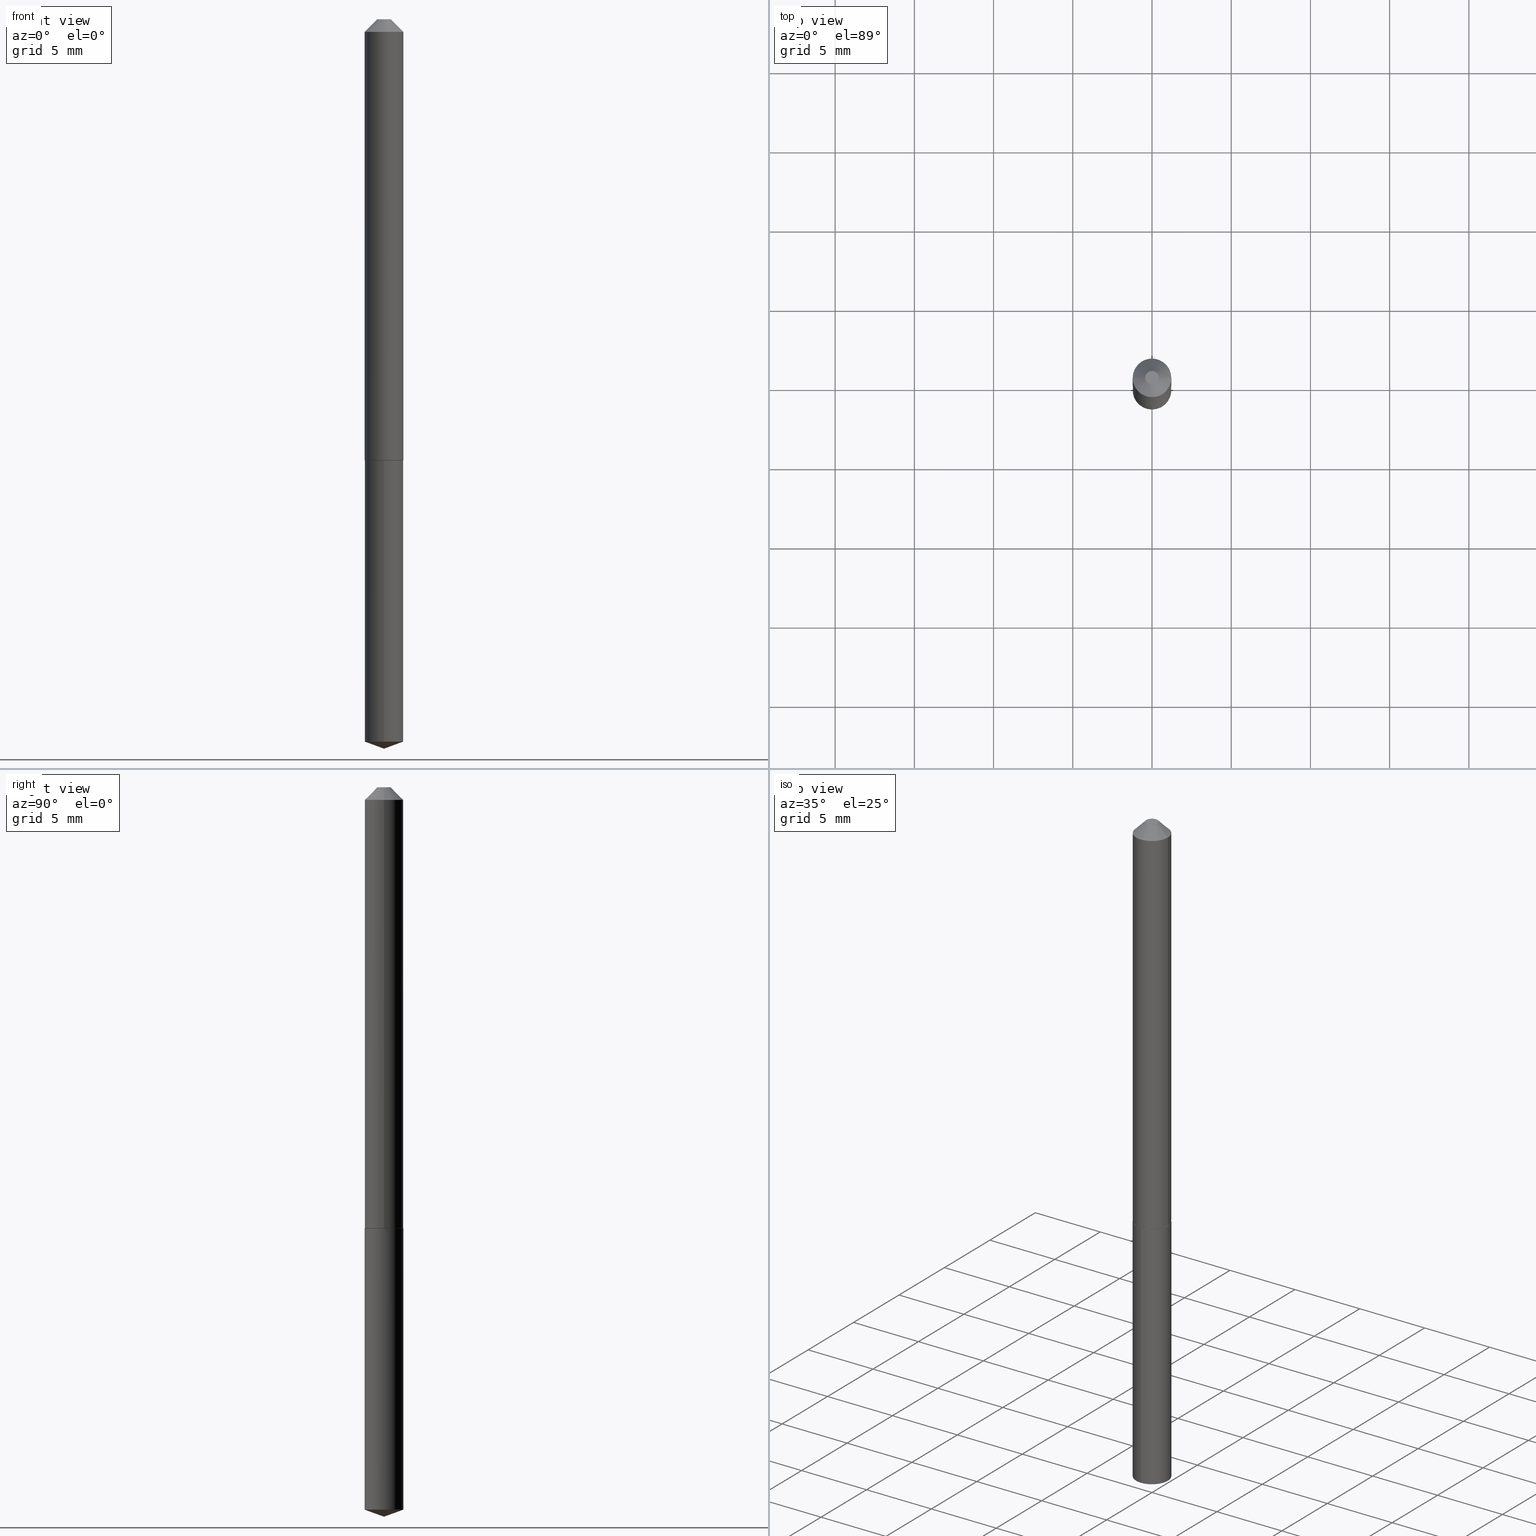
[diagram: canonical four-view strip — front | top / right | iso, engineering-drawing reading convention]
A machine part, canonical four-view strip (front | top / right | iso — engineering-drawing reading convention). The complete STEP part file that produces these views, byte-faithful:
ISO-10303-21;
HEADER;
FILE_DESCRIPTION (( 'STEP AP203' ),
    '1' );
FILE_NAME ('56250.STEP',
    '2024-04-22T21:28:52',
    ( '' ),
    ( '' ),
    'SwSTEP 2.0',
    'SolidWorks 2023',
    '' );
FILE_SCHEMA (( 'CONFIG_CONTROL_DESIGN' ));
ENDSEC;

DATA;
#1 = ORIENTED_EDGE ( 'NONE', *, *, #209, .T. ) ;
#2 = CIRCLE ( 'NONE', #269, 0.04750000000000010464 ) ;
#3 = PERSON_AND_ORGANIZATION ( #266, #111 ) ;
#4 = EDGE_LOOP ( 'NONE', ( #155, #368, #305, #64 ) ) ;
#5 = ADVANCED_FACE ( 'NONE', ( #193 ), #282, .F. ) ;
#6 = VERTEX_POINT ( 'NONE', #101 ) ;
#7 = VERTEX_POINT ( 'NONE', #12 ) ;
#8 = EDGE_CURVE ( 'NONE', #278, #100, #372, .T. ) ;
#9 = AXIS2_PLACEMENT_3D ( 'NONE', #171, #144, #202 ) ;
#10 = DIRECTION ( 'NONE',  ( -6.982962677686265922E-15, -1.000000000000000000, 5.691349986800547879E-15 ) ) ;
#11 = EDGE_LOOP ( 'NONE', ( #36, #90, #126, #192 ) ) ;
#12 = CARTESIAN_POINT ( 'NONE',  ( -0.01675000000000000100, 1.715190207706684202E-16, -1.224646799157442850E-19 ) ) ;
#13 = CLOSED_SHELL ( 'NONE', ( #91, #340, #182, #250, #53 ) ) ;
#14 = CIRCLE ( 'NONE', #175, 0.01674999999999999753 ) ;
#15 = EDGE_CURVE ( 'NONE', #66, #200, #103, .T. ) ;
#16 = ORIENTED_EDGE ( 'NONE', *, *, #187, .T. ) ;
#17 = ORIENTED_EDGE ( 'NONE', *, *, #246, .F. ) ;
#18 = COORDINATED_UNIVERSAL_TIME_OFFSET ( 5, 0, .BEHIND. ) ;
#19 = ORIENTED_EDGE ( 'NONE', *, *, #177, .T. ) ;
#20 = EDGE_CURVE ( 'NONE', #309, #100, #62, .T. ) ;
#21 = PERSON_AND_ORGANIZATION ( #266, #111 ) ;
#22 = DIRECTION ( 'NONE',  ( 1.000000000000000000, -6.982962677686262766E-15, 0.000000000000000000 ) ) ;
#23 = AXIS2_PLACEMENT_3D ( 'NONE', #233, #113, #174 ) ;
#24 = PERSON_AND_ORGANIZATION_ROLE ( 'creator' ) ;
#25 = DIRECTION ( 'NONE',  ( -1.000000000000000000, 6.982962677686266711E-15, 0.000000000000000000 ) ) ;
#26 = CARTESIAN_POINT ( 'NONE',  ( 4.432408605648489882E-29, -6.328315090023304083E-15, -1.812500000000000222 ) ) ;
#27 = DIRECTION ( 'NONE',  ( 2.445468806185136597E-29, -3.491481338843145583E-15, -1.000000000000000000 ) ) ;
#28 = ADVANCED_FACE ( 'NONE', ( #41 ), #225, .T. ) ;
#29 = DIRECTION ( 'NONE',  ( -6.982962677686265922E-15, -1.000000000000000000, 2.845674993400273939E-15 ) ) ;
#30 = DIRECTION ( 'NONE',  ( -2.445478307007458398E-29, 3.491467733124827463E-15, 1.000000000000000000 ) ) ;
#31 = FACE_OUTER_BOUND ( 'NONE', #302, .T. ) ;
#32 = DIRECTION ( 'NONE',  ( -2.445478307007458398E-29, 3.491467733124827463E-15, 1.000000000000000000 ) ) ;
#33 = ORIENTED_EDGE ( 'NONE', *, *, #349, .T. ) ;
#34 = CIRCLE ( 'NONE', #290, 0.04800000000000000100 ) ;
#35 = CARTESIAN_POINT ( 'NONE',  ( 3.410605131648921246E-16, 0.04799999999999618461, -1.096000000000000307 ) ) ;
#36 = ORIENTED_EDGE ( 'NONE', *, *, #60, .F. ) ;
#37 = CC_DESIGN_APPROVAL ( #264, ( #43 ) ) ;
#38 = ORIENTED_EDGE ( 'NONE', *, *, #365, .F. ) ;
#39 = APPLICATION_CONTEXT ( 'configuration controlled 3d designs of mechanical parts and assemblies' ) ;
#40 = EDGE_LOOP ( 'NONE', ( #151, #281 ) ) ;
#41 = FACE_OUTER_BOUND ( 'NONE', #223, .T. ) ;
#42 = CIRCLE ( 'NONE', #118, 0.04800000000000000100 ) ;
#43 = SECURITY_CLASSIFICATION ( '', '', #105 ) ;
#44 = DIRECTION ( 'NONE',  ( -2.445468806185136877E-29, 3.491481338843145188E-15, 1.000000000000000000 ) ) ;
#45 = ORIENTED_EDGE ( 'NONE', *, *, #154, .F. ) ;
#46 = CARTESIAN_POINT ( 'NONE',  ( -0.04800000000000013284, -3.483857293537816994E-15, -1.095500000000000140 ) ) ;
#47 = EDGE_CURVE ( 'NONE', #161, #200, #374, .T. ) ;
#48 =( LENGTH_UNIT ( ) NAMED_UNIT ( * ) SI_UNIT ( $, .METRE. ) );
#49 = DIRECTION ( 'NONE',  ( 1.000000000000000000, -6.982962677686266711E-15, 4.876219677916620331E-29 ) ) ;
#50 = PRODUCT_RELATED_PRODUCT_CATEGORY ( 'detail', '', ( #238 ) ) ;
#51 = CARTESIAN_POINT ( 'NONE',  ( 0.000000000000000000, 0.000000000000000000, 0.000000000000000000 ) ) ;
#52 = CARTESIAN_POINT ( 'NONE',  ( 0.04750000000000010464, -4.158354274562186373E-15, -1.096000000000000085 ) ) ;
#53 = ADVANCED_FACE ( 'NONE', ( #369 ), #341, .F. ) ;
#54 = FACE_OUTER_BOUND ( 'NONE', #149, .T. ) ;
#55 = VECTOR ( 'NONE', #180, 39.37007874015748143 ) ;
#56 = LOCAL_TIME ( 17, 28, 52.00000000000000000, #357 ) ;
#57 = DIRECTION ( 'NONE',  ( 0.000000000000000000, 0.000000000000000000, 1.000000000000000000 ) ) ;
#58 = CARTESIAN_POINT ( 'NONE',  ( 0.04800000000000000794, -4.384126957318825829E-16, -0.03125000000000020123 ) ) ;
#59 = CARTESIAN_POINT ( 'NONE',  ( 0.000000000000000000, 0.000000000000000000, 0.000000000000000000 ) ) ;
#60 = EDGE_CURVE ( 'NONE', #188, #7, #67, .T. ) ;
#61 = APPROVAL ( #170, 'UNSPECIFIED' ) ;
#62 = CIRCLE ( 'NONE', #158, 0.04800000000000000794 ) ;
#63 = AXIS2_PLACEMENT_3D ( 'NONE', #390, #32, #122 ) ;
#64 = ORIENTED_EDGE ( 'NONE', *, *, #177, .F. ) ;
#65 = EDGE_LOOP ( 'NONE', ( #123, #256, #213, #69 ) ) ;
#66 = VERTEX_POINT ( 'NONE', #234 ) ;
#67 = CIRCLE ( 'NONE', #152, 0.01674999999999999753 ) ;
#68 = APPROVAL_PERSON_ORGANIZATION ( #3, #248, #115 ) ;
#69 = ORIENTED_EDGE ( 'NONE', *, *, #316, .F. ) ;
#70 = CARTESIAN_POINT ( 'NONE',  ( 0.04800000000000007733, -3.351822085289413070E-16, 2.340564852382052838E-30 ) ) ;
#71 = ORIENTED_EDGE ( 'NONE', *, *, #15, .T. ) ;
#72 = CALENDAR_DATE ( 2024, 22, 4 ) ;
#73 = CYLINDRICAL_SURFACE ( 'NONE', #9, 0.04800000000000007733 ) ;
#74 = CARTESIAN_POINT ( 'NONE',  ( 2.679011077175817397E-29, -3.824917806702666569E-15, -1.095500000000000140 ) ) ;
#75 = APPROVAL_STATUS ( 'not_yet_approved' ) ;
#76 = FACE_OUTER_BOUND ( 'NONE', #156, .T. ) ;
#77 = AXIS2_PLACEMENT_3D ( 'NONE', #93, #178, #301 ) ;
#78 = LINE ( 'NONE', #169, #376 ) ;
#79 = PRODUCT_DEFINITION_FORMATION_WITH_SPECIFIED_SOURCE ( 'ANY', '', #238, .NOT_KNOWN. ) ;
#80 = LINE ( 'NONE', #70, #97 ) ;
#81 = CYLINDRICAL_SURFACE ( 'NONE', #275, 0.04800000000000000100 ) ;
#82 = PERSON_AND_ORGANIZATION ( #266, #111 ) ;
#83 = CYLINDRICAL_SURFACE ( 'NONE', #334, 0.04800000000000007733 ) ;
#84 = CARTESIAN_POINT ( 'NONE',  ( 7.642090019328601786E-31, -1.091087918388490144E-16, -0.03125000000000020123 ) ) ;
#85 = EDGE_CURVE ( 'NONE', #120, #278, #78, .T. ) ;
#86 = VECTOR ( 'NONE', #260, 39.37007874015748143 ) ;
#87 = ORIENTED_EDGE ( 'NONE', *, *, #330, .T. ) ;
#88 = COORDINATED_UNIVERSAL_TIME_OFFSET ( 5, 0, .BEHIND. ) ;
#89 = DIRECTION ( 'NONE',  ( 1.000000000000000000, -6.982962677686266711E-15, 0.000000000000000000 ) ) ;
#90 = ORIENTED_EDGE ( 'NONE', *, *, #190, .T. ) ;
#91 = ADVANCED_FACE ( 'NONE', ( #383 ), #81, .T. ) ;
#92 = APPLICATION_PROTOCOL_DEFINITION ( 'international standard', 'config_control_design', 1994, #39 ) ;
#93 = CARTESIAN_POINT ( 'NONE',  ( 7.642090019328601786E-31, -1.091087918388490144E-16, -0.03125000000000020123 ) ) ;
#94 = ORIENTED_EDGE ( 'NONE', *, *, #316, .T. ) ;
#95 = ORIENTED_EDGE ( 'NONE', *, *, #8, .T. ) ;
#96 = UNCERTAINTY_MEASURE_WITH_UNIT (LENGTH_MEASURE( 1.000000000000000082E-05 ), #263, 'distance_accuracy_value', 'NONE');
#97 = VECTOR ( 'NONE', #296, 39.37007874015748143 ) ;
#98 = EDGE_LOOP ( 'NONE', ( #183, #287, #87, #19 ) ) ;
#99 = EDGE_CURVE ( 'NONE', #337, #120, #2, .T. ) ;
#100 = VERTEX_POINT ( 'NONE', #352 ) ;
#101 = CARTESIAN_POINT ( 'NONE',  ( 0.04800000000000013284, -4.160100015231607876E-15, -1.095500000000000140 ) ) ;
#102 = CALENDAR_DATE ( 2024, 22, 4 ) ;
#103 = CIRCLE ( 'NONE', #117, 0.04800000000000000100 ) ;
#104 = CARTESIAN_POINT ( 'NONE',  ( -0.04800000000000007733, 3.410605131648486387E-16, -2.361088843322358304E-30 ) ) ;
#105 = SECURITY_CLASSIFICATION_LEVEL ( 'unclassified' ) ;
#106 = MANIFOLD_SOLID_BREP ( 'Body-Move/Copy2[1]', #13 ) ;
#107 = DIRECTION ( 'NONE',  ( -6.561838499445200852E-15, -0.9396926207859070956, 0.3420201433256720991 ) ) ;
#108 = CARTESIAN_POINT ( 'NONE',  ( -0.04750000000000010464, -3.486506520711928589E-15, -1.096000000000000085 ) ) ;
#109 = LINE ( 'NONE', #26, #243 ) ;
#110 = FACE_OUTER_BOUND ( 'NONE', #4, .T. ) ;
#111 = ORGANIZATION ( 'UNSPECIFIED', 'UNSPECIFIED', '' ) ;
#112 = MANIFOLD_SOLID_BREP ( 'Body-Move/Copy2[2]', #370 ) ;
#113 = DIRECTION ( 'NONE',  ( -2.445478307007458398E-29, 3.491467733124827463E-15, 1.000000000000000000 ) ) ;
#114 = DIRECTION ( 'NONE',  ( -6.982962677686265922E-15, -1.000000000000000000, 5.691349986800547879E-15 ) ) ;
#115 = APPROVAL_ROLE ( '' ) ;
#116 = DIRECTION ( 'NONE',  ( -1.000000000000000000, 6.982962677686265922E-15, -4.876176775795935793E-29 ) ) ;
#117 = AXIS2_PLACEMENT_3D ( 'NONE', #254, #252, #228 ) ;
#118 = AXIS2_PLACEMENT_3D ( 'NONE', #385, #231, #114 ) ;
#119 = APPROVAL_PERSON_ORGANIZATION ( #82, #61, #262 ) ;
#120 = VERTEX_POINT ( 'NONE', #108 ) ;
#121 = APPROVAL_STATUS ( 'not_yet_approved' ) ;
#122 = DIRECTION ( 'NONE',  ( -6.982962677686266711E-15, -1.000000000000000000, 3.475157955500730864E-15 ) ) ;
#123 = ORIENTED_EDGE ( 'NONE', *, *, #167, .T. ) ;
#124 = ORIENTED_EDGE ( 'NONE', *, *, #85, .F. ) ;
#125 = ORIENTED_EDGE ( 'NONE', *, *, #349, .F. ) ;
#126 = ORIENTED_EDGE ( 'NONE', *, *, #20, .T. ) ;
#127 = VECTOR ( 'NONE', #44, 39.37007874015748143 ) ;
#128 = CIRCLE ( 'NONE', #77, 0.04800000000000000794 ) ;
#129 = DIRECTION ( 'NONE',  ( -2.445468806185136597E-29, 3.491481338843145583E-15, 1.000000000000000000 ) ) ;
#130 = DIRECTION ( 'NONE',  ( -2.438088387897960049E-29, 3.491481338843145188E-15, 1.000000000000000000 ) ) ;
#131 = ORIENTED_EDGE ( 'NONE', *, *, #99, .T. ) ;
#132 = PERSON_AND_ORGANIZATION_ROLE ( 'design_supplier' ) ;
#133 = CONICAL_SURFACE ( 'NONE', #63, 108.1684023407331239, 1.221730476396030607 ) ;
#134 = AXIS2_PLACEMENT_3D ( 'NONE', #358, #199, #355 ) ;
#135 = CARTESIAN_POINT ( 'NONE',  ( -0.04800000000000000794, 2.260734166900918612E-16, -0.03125000000000020123 ) ) ;
#136 = DIRECTION ( 'NONE',  ( -0.7071067811865414665, 7.493145998870332072E-15, 0.7071067811865535679 ) ) ;
#137 = LENGTH_MEASURE_WITH_UNIT ( LENGTH_MEASURE( 0.02539999999999999897 ), #48 );
#138 = CARTESIAN_POINT ( 'NONE',  ( 2.680233811578910199E-29, -3.826663547372088073E-15, -1.096000000000000085 ) ) ;
#139 = DIRECTION ( 'NONE',  ( -2.445468806185136597E-29, 3.491481338843145583E-15, 1.000000000000000000 ) ) ;
#140 = ADVANCED_FACE ( 'NONE', ( #348 ), #204, .T. ) ;
#141 = DIRECTION ( 'NONE',  ( -2.445468806185136597E-29, 3.491481338843145583E-15, 1.000000000000000000 ) ) ;
#142 = DATE_AND_TIME ( #102, #56 ) ;
#143 = EDGE_CURVE ( 'NONE', #161, #279, #42, .T. ) ;
#144 = DIRECTION ( 'NONE',  ( -2.445468806185136597E-29, 3.491481338843145583E-15, 1.000000000000000000 ) ) ;
#145 = PLANE ( 'NONE',  #221 ) ;
#146 = CC_DESIGN_PERSON_AND_ORGANIZATION_ASSIGNMENT ( #21, #24, ( #313 ) ) ;
#147 = VECTOR ( 'NONE', #379, 39.37007874015748143 ) ;
#148 = APPLICATION_CONTEXT ( 'configuration controlled 3d designs of mechanical parts and assemblies' ) ;
#149 = EDGE_LOOP ( 'NONE', ( #125, #162, #219 ) ) ;
#150 = CARTESIAN_POINT ( 'NONE',  ( 4.389695115559621699E-29, -6.267302242375627291E-15, -1.795029428755222423 ) ) ;
#151 = ORIENTED_EDGE ( 'NONE', *, *, #99, .F. ) ;
#152 = AXIS2_PLACEMENT_3D ( 'NONE', #176, #141, #49 ) ;
#153 = AXIS2_PLACEMENT_3D ( 'NONE', #150, #280, #10 ) ;
#154 = EDGE_CURVE ( 'NONE', #6, #278, #329, .T. ) ;
#155 = ORIENTED_EDGE ( 'NONE', *, *, #8, .F. ) ;
#156 = EDGE_LOOP ( 'NONE', ( #220, #345, #94, #38 ) ) ;
#157 = CARTESIAN_POINT ( 'NONE',  ( 2.679011077175817397E-29, -3.824917806702666569E-15, -1.095500000000000140 ) ) ;
#158 = AXIS2_PLACEMENT_3D ( 'NONE', #251, #255, #224 ) ;
#159 = CIRCLE ( 'NONE', #366, 0.04750000000000010464 ) ;
#160 = ADVANCED_FACE ( 'NONE', ( #210 ), #145, .F. ) ;
#161 = VERTEX_POINT ( 'NONE', #186 ) ;
#162 = ORIENTED_EDGE ( 'NONE', *, *, #217, .T. ) ;
#163 = FACE_OUTER_BOUND ( 'NONE', #362, .T. ) ;
#164 = LOCAL_TIME ( 17, 28, 52.00000000000000000, #18 ) ;
#165 = CARTESIAN_POINT ( 'NONE',  ( 4.432429614068723901E-29, -6.328285266288750418E-15, -1.812500000000000222 ) ) ;
#166 = DATE_AND_TIME ( #324, #285 ) ;
#167 = EDGE_CURVE ( 'NONE', #279, #161, #308, .T. ) ;
#168 = DIRECTION ( 'NONE',  ( 0.7071067811865414665, -2.468850131082193557E-15, 0.7071067811865535679 ) ) ;
#169 = CARTESIAN_POINT ( 'NONE',  ( -0.04800000000000013284, -3.483857293537816994E-15, -1.095500000000000140 ) ) ;
#170 = APPROVAL_STATUS ( 'not_yet_approved' ) ;
#171 = CARTESIAN_POINT ( 'NONE',  ( 0.000000000000000000, 0.000000000000000000, 0.000000000000000000 ) ) ;
#172 = PRODUCT_DEFINITION_SHAPE ( 'NONE', 'NONE',  #313 ) ;
#173 = CC_DESIGN_PERSON_AND_ORGANIZATION_ASSIGNMENT ( #229, #346, ( #43 ) ) ;
#174 = DIRECTION ( 'NONE',  ( -6.982962677686266711E-15, -1.000000000000000000, 3.475157955500730864E-15 ) ) ;
#175 = AXIS2_PLACEMENT_3D ( 'NONE', #218, #336, #344 ) ;
#176 = CARTESIAN_POINT ( 'NONE',  ( 2.994835545909338814E-48, -4.275831445896991422E-34, -1.224646799147358199E-19 ) ) ;
#177 = EDGE_CURVE ( 'NONE', #100, #309, #128, .T. ) ;
#178 = DIRECTION ( 'NONE',  ( -2.445468806185136597E-29, 3.491481338843145583E-15, 1.000000000000000000 ) ) ;
#179 = VECTOR ( 'NONE', #320, 39.37007874015748143 ) ;
#180 = DIRECTION ( 'NONE',  ( 0.7071067811865453523, -7.319954787623248157E-15, -0.7071067811865496822 ) ) ;
#181 = EDGE_LOOP ( 'NONE', ( #1, #333 ) ) ;
#182 = ADVANCED_FACE ( 'NONE', ( #31 ), #133, .T. ) ;
#183 = ORIENTED_EDGE ( 'NONE', *, *, #190, .F. ) ;
#184 =( NAMED_UNIT ( * ) SI_UNIT ( $, .STERADIAN. ) SOLID_ANGLE_UNIT ( ) );
#185 = CC_DESIGN_PERSON_AND_ORGANIZATION_ASSIGNMENT ( #268, #350, ( #79 ) ) ;
#186 = CARTESIAN_POINT ( 'NONE',  ( 3.410605131648918288E-16, 0.04799999999999372130, -1.795029428755222645 ) ) ;
#187 = EDGE_CURVE ( 'NONE', #120, #337, #159, .T. ) ;
#188 = VERTEX_POINT ( 'NONE', #214 ) ;
#189 = CIRCLE ( 'NONE', #371, 0.04800000000000013284 ) ;
#190 = EDGE_CURVE ( 'NONE', #188, #309, #332, .T. ) ;
#191 = LOCAL_TIME ( 17, 28, 52.00000000000000000, #198 ) ;
#192 = ORIENTED_EDGE ( 'NONE', *, *, #330, .F. ) ;
#193 = FACE_OUTER_BOUND ( 'NONE', #40, .T. ) ;
#194 = ORIENTED_EDGE ( 'NONE', *, *, #217, .F. ) ;
#195 = AXIS2_PLACEMENT_3D ( 'NONE', #319, #230, #25 ) ;
#196 = VERTEX_POINT ( 'NONE', #304 ) ;
#197 = DIMENSIONAL_EXPONENTS ( 1.000000000000000000, 0.000000000000000000, 0.000000000000000000, 0.000000000000000000, 0.000000000000000000, 0.000000000000000000, 0.000000000000000000 ) ;
#198 = COORDINATED_UNIVERSAL_TIME_OFFSET ( 5, 0, .BEHIND. ) ;
#199 = DIRECTION ( 'NONE',  ( -2.445478307007458398E-29, 3.491467733124827463E-15, 1.000000000000000000 ) ) ;
#200 = VERTEX_POINT ( 'NONE', #35 ) ;
#201 = DATE_AND_TIME ( #72, #191 ) ;
#202 = DIRECTION ( 'NONE',  ( 1.000000000000000000, -6.982962677686265922E-15, 4.876176775795935793E-29 ) ) ;
#203 = COORDINATED_UNIVERSAL_TIME_OFFSET ( 5, 0, .BEHIND. ) ;
#204 = CONICAL_SURFACE ( 'NONE', #211, 0.04800000000000000794, 0.7853981633974452814 ) ;
#205 = CARTESIAN_POINT ( 'NONE',  ( -3.351822085288967856E-16, -0.04800000000000624600, -1.795029428755222201 ) ) ;
#206 = CARTESIAN_POINT ( 'NONE',  ( 0.04800000000000013284, -4.160100015231607876E-15, -1.095500000000000140 ) ) ;
#207 = CARTESIAN_POINT ( 'NONE',  ( 2.680233811578910199E-29, -3.826663547372088073E-15, -1.096000000000000085 ) ) ;
#208 = FACE_OUTER_BOUND ( 'NONE', #11, .T. ) ;
#209 = EDGE_CURVE ( 'NONE', #7, #188, #14, .T. ) ;
#210 = FACE_OUTER_BOUND ( 'NONE', #181, .T. ) ;
#211 = AXIS2_PLACEMENT_3D ( 'NONE', #84, #27, #242 ) ;
#212 = CC_DESIGN_PERSON_AND_ORGANIZATION_ASSIGNMENT ( #363, #386, ( #238 ) ) ;
#213 = ORIENTED_EDGE ( 'NONE', *, *, #15, .F. ) ;
#214 = CARTESIAN_POINT ( 'NONE',  ( 0.01675000000000000100, -2.766630185972779012E-16, -1.224646799133602245E-19 ) ) ;
#215 = SHAPE_DEFINITION_REPRESENTATION ( #172, #300 ) ;
#216 = AXIS2_PLACEMENT_3D ( 'NONE', #288, #293, #22 ) ;
#217 = EDGE_CURVE ( 'NONE', #196, #161, #347, .T. ) ;
#218 = CARTESIAN_POINT ( 'NONE',  ( 2.994835545909338814E-48, -4.275831445896991422E-34, -1.224646799147358199E-19 ) ) ;
#219 = ORIENTED_EDGE ( 'NONE', *, *, #167, .F. ) ;
#220 = ORIENTED_EDGE ( 'NONE', *, *, #47, .F. ) ;
#221 = AXIS2_PLACEMENT_3D ( 'NONE', #273, #387, #116 ) ;
#222 = CARTESIAN_POINT ( 'NONE',  ( 2.680233811578910199E-29, -3.826663547372088073E-15, -1.096000000000000085 ) ) ;
#223 = EDGE_LOOP ( 'NONE', ( #124, #16, #377, #17 ) ) ;
#224 = DIRECTION ( 'NONE',  ( 1.000000000000000000, -6.982962677686266711E-15, 0.000000000000000000 ) ) ;
#225 = CONICAL_SURFACE ( 'NONE', #289, 0.04800000000000013284, 0.7853981633974397303 ) ;
#226 = APPROVAL_DATE_TIME ( #232, #61 ) ;
#227 = DIRECTION ( 'NONE',  ( 1.000000000000000000, -6.982962677686262766E-15, 0.000000000000000000 ) ) ;
#228 = DIRECTION ( 'NONE',  ( -6.982962677686265922E-15, -1.000000000000000000, 2.845674993400273939E-15 ) ) ;
#229 = PERSON_AND_ORGANIZATION ( #266, #111 ) ;
#230 = DIRECTION ( 'NONE',  ( 2.445468806185136597E-29, -3.491481338843145583E-15, -1.000000000000000000 ) ) ;
#231 = DIRECTION ( 'NONE',  ( -2.445478307007458398E-29, 3.491467733124827463E-15, 1.000000000000000000 ) ) ;
#232 = DATE_AND_TIME ( #295, #164 ) ;
#233 = CARTESIAN_POINT ( 'NONE',  ( -9.184625448568089827E-28, 1.311310593936875704E-13, 37.55757874015748143 ) ) ;
#234 = CARTESIAN_POINT ( 'NONE',  ( -3.351822085289139434E-16, -0.04800000000000382433, -1.096000000000000085 ) ) ;
#235 = CALENDAR_DATE ( 2024, 22, 4 ) ;
#236 = AXIS2_PLACEMENT_3D ( 'NONE', #59, #57, #241 ) ;
#237 = CARTESIAN_POINT ( 'NONE',  ( 2.679011077175817397E-29, -3.824917806702666569E-15, -1.095500000000000140 ) ) ;
#238 = PRODUCT ( '56250', '56250', '', ( #306 ) ) ;
#239 = DIRECTION ( 'NONE',  ( -2.445468806185136597E-29, 3.491481338843145583E-15, 1.000000000000000000 ) ) ;
#240 = DIRECTION ( 'NONE',  ( -2.445468806185136597E-29, 3.491481338843145583E-15, 1.000000000000000000 ) ) ;
#241 = DIRECTION ( 'NONE',  ( 1.000000000000000000, 0.000000000000000000, 0.000000000000000000 ) ) ;
#242 = DIRECTION ( 'NONE',  ( -1.000000000000000000, 6.982962677686266711E-15, 0.000000000000000000 ) ) ;
#243 = VECTOR ( 'NONE', #107, 39.37007874015748854 ) ;
#244 = ORIENTED_EDGE ( 'NONE', *, *, #259, .F. ) ;
#245 = CARTESIAN_POINT ( 'NONE',  ( 2.680233811578910199E-29, -3.826663547372088073E-15, -1.096000000000000085 ) ) ;
#246 = EDGE_CURVE ( 'NONE', #278, #6, #189, .T. ) ;
#247 = ORIENTED_EDGE ( 'NONE', *, *, #85, .T. ) ;
#248 = APPROVAL ( #121, 'UNSPECIFIED' ) ;
#249 =( NAMED_UNIT ( * ) PLANE_ANGLE_UNIT ( ) SI_UNIT ( $, .RADIAN. ) );
#250 = ADVANCED_FACE ( 'NONE', ( #76 ), #271, .T. ) ;
#251 = CARTESIAN_POINT ( 'NONE',  ( 7.642090019328601786E-31, -1.091087918388490144E-16, -0.03125000000000020123 ) ) ;
#252 = DIRECTION ( 'NONE',  ( -2.445478307007458398E-29, 3.491467733124827463E-15, 1.000000000000000000 ) ) ;
#253 = CONICAL_SURFACE ( 'NONE', #23, 108.1684023407331239, 1.221730476396030607 ) ;
#254 = CARTESIAN_POINT ( 'NONE',  ( 2.680233811578910199E-29, -3.826663547372088073E-15, -1.096000000000000085 ) ) ;
#255 = DIRECTION ( 'NONE',  ( -2.445468806185136597E-29, 3.491481338843145583E-15, 1.000000000000000000 ) ) ;
#256 = ORIENTED_EDGE ( 'NONE', *, *, #47, .T. ) ;
#257 = AXIS2_PLACEMENT_3D ( 'NONE', #138, #322, #294 ) ;
#258 = CONICAL_SURFACE ( 'NONE', #216, 0.04800000000000013284, 0.7853981633974397303 ) ;
#259 = EDGE_CURVE ( 'NONE', #6, #309, #80, .T. ) ;
#260 = DIRECTION ( 'NONE',  ( -2.445478307007458398E-29, 3.491467733124827463E-15, 1.000000000000000000 ) ) ;
#261 = DIRECTION ( 'NONE',  ( -6.982962677686265922E-15, -1.000000000000000000, 2.845674993400273939E-15 ) ) ;
#262 = APPROVAL_ROLE ( '' ) ;
#263 =( CONVERSION_BASED_UNIT ( 'INCH', #137 ) LENGTH_UNIT ( ) NAMED_UNIT ( #197 ) );
#264 = APPROVAL ( #75, 'UNSPECIFIED' ) ;
#265 = CARTESIAN_POINT ( 'NONE',  ( 2.680233811578910199E-29, -3.826663547372088073E-15, -1.096000000000000085 ) ) ;
#266 = PERSON ( 'UNSPECIFIED', 'UNSPECIFIED', 'UNSPECIFIED', ('UNSPECIFIED'), ('UNSPECIFIED'), ('UNSPECIFIED') ) ;
#267 = LINE ( 'NONE', #326, #86 ) ;
#268 = PERSON_AND_ORGANIZATION ( #266, #111 ) ;
#269 = AXIS2_PLACEMENT_3D ( 'NONE', #265, #297, #380 ) ;
#270 = CC_DESIGN_APPROVAL ( #61, ( #79 ) ) ;
#271 = CYLINDRICAL_SURFACE ( 'NONE', #134, 0.04800000000000000100 ) ;
#272 = DIRECTION ( 'NONE',  ( 1.000000000000000000, -6.982962677686265922E-15, 4.876176775795935793E-29 ) ) ;
#273 = CARTESIAN_POINT ( 'NONE',  ( 1.497417772954669407E-48, -2.137915722948495711E-34, -6.123233995736790996E-20 ) ) ;
#274 = ADVANCED_FACE ( 'NONE', ( #208 ), #315, .T. ) ;
#275 = AXIS2_PLACEMENT_3D ( 'NONE', #207, #30, #261 ) ;
#276 = APPLICATION_PROTOCOL_DEFINITION ( 'international standard', 'config_control_design', 1994, #148 ) ;
#277 = ADVANCED_FACE ( 'NONE', ( #292 ), #83, .T. ) ;
#278 = VERTEX_POINT ( 'NONE', #46 ) ;
#279 = VERTEX_POINT ( 'NONE', #205 ) ;
#280 = DIRECTION ( 'NONE',  ( -2.445478307007458398E-29, 3.491467733124827463E-15, 1.000000000000000000 ) ) ;
#281 = ORIENTED_EDGE ( 'NONE', *, *, #187, .F. ) ;
#282 = PLANE ( 'NONE',  #283 ) ;
#283 = AXIS2_PLACEMENT_3D ( 'NONE', #222, #130, #312 ) ;
#284 = DIRECTION ( 'NONE',  ( 1.000000000000000000, -6.982962677686262766E-15, 0.000000000000000000 ) ) ;
#285 = LOCAL_TIME ( 17, 28, 52.00000000000000000, #203 ) ;
#286 = ORIENTED_EDGE ( 'NONE', *, *, #20, .F. ) ;
#287 = ORIENTED_EDGE ( 'NONE', *, *, #209, .F. ) ;
#288 = CARTESIAN_POINT ( 'NONE',  ( 2.679011077175817397E-29, -3.824917806702666569E-15, -1.095500000000000140 ) ) ;
#289 = AXIS2_PLACEMENT_3D ( 'NONE', #157, #129, #284 ) ;
#290 = AXIS2_PLACEMENT_3D ( 'NONE', #298, #382, #29 ) ;
#291 = PERSON_AND_ORGANIZATION ( #266, #111 ) ;
#292 = FACE_OUTER_BOUND ( 'NONE', #314, .T. ) ;
#293 = DIRECTION ( 'NONE',  ( -2.445468806185136597E-29, 3.491481338843145583E-15, 1.000000000000000000 ) ) ;
#294 = DIRECTION ( 'NONE',  ( 6.982962677686265922E-15, 1.000000000000000000, -3.491467733124827463E-15 ) ) ;
#295 = CALENDAR_DATE ( 2024, 22, 4 ) ;
#296 = DIRECTION ( 'NONE',  ( -2.445468806185136877E-29, 3.491481338843145188E-15, 1.000000000000000000 ) ) ;
#297 = DIRECTION ( 'NONE',  ( -2.445468806185136597E-29, 3.491481338843145583E-15, 1.000000000000000000 ) ) ;
#298 = CARTESIAN_POINT ( 'NONE',  ( 2.680233811578910199E-29, -3.826663547372088073E-15, -1.096000000000000085 ) ) ;
#299 = ADVANCED_FACE ( 'NONE', ( #163 ), #258, .T. ) ;
#300 = ADVANCED_BREP_SHAPE_REPRESENTATION ( '56250', ( #106, #112, #236 ), #353 ) ;
#301 = DIRECTION ( 'NONE',  ( 1.000000000000000000, -6.982962677686266711E-15, 0.000000000000000000 ) ) ;
#302 = EDGE_LOOP ( 'NONE', ( #194, #33, #339 ) ) ;
#303 = APPROVAL_PERSON_ORGANIZATION ( #291, #264, #381 ) ;
#304 = CARTESIAN_POINT ( 'NONE',  ( 4.432429431451019257E-29, -6.328285266288750418E-15, -1.812500000000000222 ) ) ;
#305 = ORIENTED_EDGE ( 'NONE', *, *, #259, .T. ) ;
#306 = MECHANICAL_CONTEXT ( 'NONE', #39, 'mechanical' ) ;
#307 = ORIENTED_EDGE ( 'NONE', *, *, #311, .F. ) ;
#308 = CIRCLE ( 'NONE', #153, 0.04800000000000000100 ) ;
#309 = VERTEX_POINT ( 'NONE', #325 ) ;
#310 = ORIENTED_EDGE ( 'NONE', *, *, #365, .T. ) ;
#311 = EDGE_CURVE ( 'NONE', #337, #6, #328, .T. ) ;
#312 = DIRECTION ( 'NONE',  ( 1.000000000000000000, -6.982962677686265922E-15, 4.876176775795935793E-29 ) ) ;
#313 = PRODUCT_DEFINITION ( 'UNKNOWN', '', #79, #335 ) ;
#314 = EDGE_LOOP ( 'NONE', ( #317, #95, #286, #244 ) ) ;
#315 = CONICAL_SURFACE ( 'NONE', #195, 0.04800000000000000794, 0.7853981633974452814 ) ;
#316 = EDGE_CURVE ( 'NONE', #279, #66, #267, .T. ) ;
#317 = ORIENTED_EDGE ( 'NONE', *, *, #154, .T. ) ;
#318 = DATE_TIME_ROLE ( 'creation_date' ) ;
#319 = CARTESIAN_POINT ( 'NONE',  ( 7.642090019328601786E-31, -1.091087918388490144E-16, -0.03125000000000020123 ) ) ;
#320 = DIRECTION ( 'NONE',  ( -2.445478307007458398E-29, 3.491467733124827463E-15, 1.000000000000000000 ) ) ;
#321 = DATE_TIME_ROLE ( 'classification_date' ) ;
#322 = DIRECTION ( 'NONE',  ( 2.445478307007458118E-29, -3.491467733124827463E-15, -1.000000000000000000 ) ) ;
#323 = VECTOR ( 'NONE', #168, 39.37007874015748143 ) ;
#324 = CALENDAR_DATE ( 2024, 22, 4 ) ;
#325 = CARTESIAN_POINT ( 'NONE',  ( 0.04800000000000000794, -4.442910003677899146E-16, -0.03125000000000020123 ) ) ;
#326 = CARTESIAN_POINT ( 'NONE',  ( -3.351822085289139434E-16, -0.04800000000000382433, -1.096000000000000085 ) ) ;
#327 = DATE_AND_TIME ( #235, #342 ) ;
#328 = LINE ( 'NONE', #206, #323 ) ;
#329 = CIRCLE ( 'NONE', #361, 0.04800000000000013284 ) ;
#330 = EDGE_CURVE ( 'NONE', #7, #100, #384, .T. ) ;
#331 = CC_DESIGN_PERSON_AND_ORGANIZATION_ASSIGNMENT ( #343, #132, ( #79 ) ) ;
#332 = LINE ( 'NONE', #58, #55 ) ;
#333 = ORIENTED_EDGE ( 'NONE', *, *, #60, .T. ) ;
#334 = AXIS2_PLACEMENT_3D ( 'NONE', #51, #139, #272 ) ;
#335 = DESIGN_CONTEXT ( 'detailed design', #148, 'design' ) ;
#336 = DIRECTION ( 'NONE',  ( -2.445468806185136597E-29, 3.491481338843145583E-15, 1.000000000000000000 ) ) ;
#337 = VERTEX_POINT ( 'NONE', #52 ) ;
#338 = EDGE_LOOP ( 'NONE', ( #71, #310 ) ) ;
#339 = ORIENTED_EDGE ( 'NONE', *, *, #143, .F. ) ;
#340 = ADVANCED_FACE ( 'NONE', ( #54 ), #253, .T. ) ;
#341 = PLANE ( 'NONE',  #257 ) ;
#342 = LOCAL_TIME ( 17, 28, 52.00000000000000000, #88 ) ;
#343 = PERSON_AND_ORGANIZATION ( #266, #111 ) ;
#344 = DIRECTION ( 'NONE',  ( 1.000000000000000000, -6.982962677686266711E-15, 4.876219677916620331E-29 ) ) ;
#345 = ORIENTED_EDGE ( 'NONE', *, *, #143, .T. ) ;
#346 = PERSON_AND_ORGANIZATION_ROLE ( 'classification_officer' ) ;
#347 = LINE ( 'NONE', #165, #360 ) ;
#348 = FACE_OUTER_BOUND ( 'NONE', #98, .T. ) ;
#349 = EDGE_CURVE ( 'NONE', #196, #279, #109, .T. ) ;
#350 = PERSON_AND_ORGANIZATION_ROLE ( 'creator' ) ;
#351 = DIRECTION ( 'NONE',  ( 6.676917655467966551E-15, 0.9396926207859094271, 0.3420201433256654933 ) ) ;
#352 = CARTESIAN_POINT ( 'NONE',  ( -0.04800000000000000794, -1.625952786105907865E-15, -0.03125000000000020123 ) ) ;
#353 =( GEOMETRIC_REPRESENTATION_CONTEXT ( 3 ) GLOBAL_UNCERTAINTY_ASSIGNED_CONTEXT ( ( #96 ) ) GLOBAL_UNIT_ASSIGNED_CONTEXT ( ( #263, #249, #184 ) ) REPRESENTATION_CONTEXT ( 'NONE', 'WORKASPACE' ) );
#354 = CC_DESIGN_SECURITY_CLASSIFICATION ( #43, ( #79 ) ) ;
#355 = DIRECTION ( 'NONE',  ( -6.982962677686265922E-15, -1.000000000000000000, 2.845674993400273939E-15 ) ) ;
#356 = CC_DESIGN_DATE_AND_TIME_ASSIGNMENT ( #201, #321, ( #43 ) ) ;
#357 = COORDINATED_UNIVERSAL_TIME_OFFSET ( 5, 0, .BEHIND. ) ;
#358 = CARTESIAN_POINT ( 'NONE',  ( 2.680233811578910199E-29, -3.826663547372088073E-15, -1.096000000000000085 ) ) ;
#359 = DIRECTION ( 'NONE',  ( 1.000000000000000000, -6.982962677686262766E-15, 0.000000000000000000 ) ) ;
#360 = VECTOR ( 'NONE', #351, 39.37007874015748854 ) ;
#361 = AXIS2_PLACEMENT_3D ( 'NONE', #74, #240, #359 ) ;
#362 = EDGE_LOOP ( 'NONE', ( #131, #247, #45, #307 ) ) ;
#363 = PERSON_AND_ORGANIZATION ( #266, #111 ) ;
#364 = DIRECTION ( 'NONE',  ( -2.445468806185136597E-29, 3.491481338843145583E-15, 1.000000000000000000 ) ) ;
#365 = EDGE_CURVE ( 'NONE', #200, #66, #34, .T. ) ;
#366 = AXIS2_PLACEMENT_3D ( 'NONE', #245, #364, #89 ) ;
#367 = ADVANCED_FACE ( 'NONE', ( #110 ), #73, .T. ) ;
#368 = ORIENTED_EDGE ( 'NONE', *, *, #246, .T. ) ;
#369 = FACE_OUTER_BOUND ( 'NONE', #338, .T. ) ;
#370 = CLOSED_SHELL ( 'NONE', ( #274, #277, #299, #5, #28, #367, #140, #160 ) ) ;
#371 = AXIS2_PLACEMENT_3D ( 'NONE', #237, #239, #227 ) ;
#372 = LINE ( 'NONE', #104, #127 ) ;
#373 = CARTESIAN_POINT ( 'NONE',  ( 3.410605131648748190E-16, 0.04799999999999617073, -1.096000000000000307 ) ) ;
#374 = LINE ( 'NONE', #373, #179 ) ;
#375 = APPROVAL_DATE_TIME ( #327, #248 ) ;
#376 = VECTOR ( 'NONE', #136, 39.37007874015748143 ) ;
#377 = ORIENTED_EDGE ( 'NONE', *, *, #311, .T. ) ;
#378 = CC_DESIGN_APPROVAL ( #248, ( #313 ) ) ;
#379 = DIRECTION ( 'NONE',  ( -0.7071067811865453523, 2.468850131082234184E-15, -0.7071067811865496822 ) ) ;
#380 = DIRECTION ( 'NONE',  ( 1.000000000000000000, -6.982962677686266711E-15, 0.000000000000000000 ) ) ;
#381 = APPROVAL_ROLE ( '' ) ;
#382 = DIRECTION ( 'NONE',  ( -2.445478307007458398E-29, 3.491467733124827463E-15, 1.000000000000000000 ) ) ;
#383 = FACE_OUTER_BOUND ( 'NONE', #65, .T. ) ;
#384 = LINE ( 'NONE', #135, #147 ) ;
#385 = CARTESIAN_POINT ( 'NONE',  ( 4.389695115559621699E-29, -6.267302242375627291E-15, -1.795029428755222423 ) ) ;
#386 = PERSON_AND_ORGANIZATION_ROLE ( 'design_owner' ) ;
#387 = DIRECTION ( 'NONE',  ( 2.438088387897960049E-29, -3.491481338843145188E-15, -1.000000000000000000 ) ) ;
#388 = APPROVAL_DATE_TIME ( #166, #264 ) ;
#389 = CC_DESIGN_DATE_AND_TIME_ASSIGNMENT ( #142, #318, ( #313 ) ) ;
#390 = CARTESIAN_POINT ( 'NONE',  ( -9.184625448568089827E-28, 1.311310593936875704E-13, 37.55757874015748143 ) ) ;
ENDSEC;
END-ISO-10303-21;
